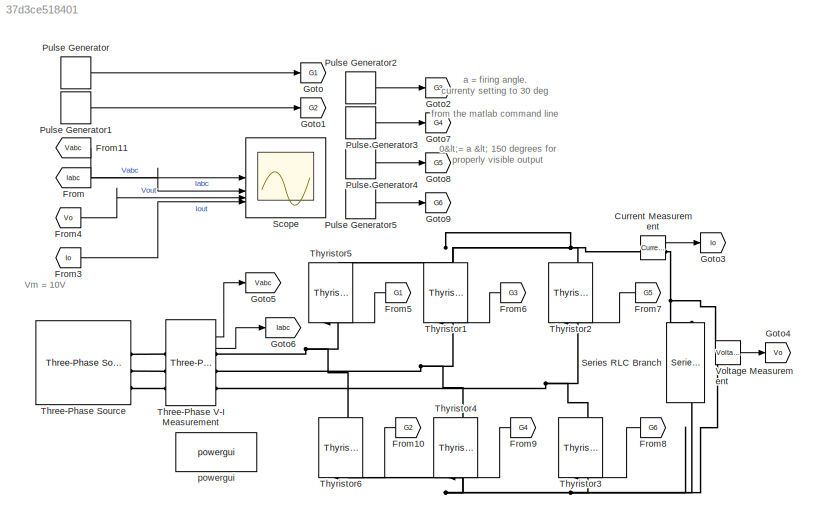
MODEL slx_37d3ce518401
KIND model
CONFIG AbsTol = auto
CONFIG EnableMultiTasking = off
CONFIG FixedStep = auto
CONFIG MaxStep = auto
CONFIG MinStep = auto
CONFIG RelTol = 1e-3
CONFIG SampleTimeConstraint = Unconstrained
CONFIG SolverName = VariableStepAuto
CONFIG StartTime = 0.0
CONFIG StopTime = 0.1
BLOCK [Reference] Current Measurement  REF=spsCurrentMeasurementLib/Current Measurement
  LibrarySourceBlock = sps_lib/Sensors and Measurements/Current Measurement
  SourceBlock = spsCurrentMeasurementLib/Current Measurement
  SourceType = Current Measurement
  UserDataPersistent = on
BLOCK [From] From
  GotoTag = Iabc
BLOCK [From] From10
  GotoTag = G2
  NameLocation = top
BLOCK [From] From11
  GotoTag = Vabc
BLOCK [From] From3
  GotoTag = Io
BLOCK [From] From4
  GotoTag = Vo
BLOCK [From] From5
  GotoTag = G1
  NameLocation = top
BLOCK [From] From6
  GotoTag = G3
  NameLocation = top
BLOCK [From] From7
  GotoTag = G5
  NameLocation = top
BLOCK [From] From8
  GotoTag = G6
  NameLocation = top
BLOCK [From] From9
  GotoTag = G4
  NameLocation = top
BLOCK [Goto] Goto
  GotoTag = G1
BLOCK [Goto] Goto1
  GotoTag = G2
BLOCK [Goto] Goto2
  GotoTag = G3
BLOCK [Goto] Goto3
  GotoTag = Io
BLOCK [Goto] Goto4
  GotoTag = Vo
BLOCK [Goto] Goto5
  GotoTag = Vabc
BLOCK [Goto] Goto6
  GotoTag = Iabc
BLOCK [Goto] Goto7
  GotoTag = G4
BLOCK [Goto] Goto8
  GotoTag = G5
BLOCK [Goto] Goto9
  GotoTag = G6
BLOCK [DiscretePulseGenerator] Pulse Generator
  Period = 0.02
  PhaseDelay = (a)*0.02/360
  PulseType = Time based
  PulseWidth = 5
BLOCK [DiscretePulseGenerator] Pulse Generator1
  Period = 0.02
  PhaseDelay = (a+180)*0.02/360
  PulseType = Time based
  PulseWidth = 5
BLOCK [DiscretePulseGenerator] Pulse Generator2
  Period = 0.02
  PhaseDelay = (a+120)*0.02/360
  PulseType = Time based
  PulseWidth = 5
BLOCK [DiscretePulseGenerator] Pulse Generator3
  Period = 0.02
  PhaseDelay = (a+300)*0.02/360
  PulseType = Time based
  PulseWidth = 5
BLOCK [DiscretePulseGenerator] Pulse Generator4
  Period = 0.02
  PhaseDelay = (a+240)*0.02/360
  PulseType = Time based
  PulseWidth = 5
BLOCK [DiscretePulseGenerator] Pulse Generator5
  Period = 0.02
  PhaseDelay = (a+60)*0.02/360
  PulseType = Time based
  PulseWidth = 5
BLOCK [Scope] Scope
  Floating = off
  NumInputPorts = 4
  ScopeSpecificationString = Simulink.scopes.TimeScopeBlockCfg('CurrentConfiguration', extmgr.ConfigurationSet(extmgr.Configuration('Core','General UI',true,'FigureColor',[1 1 1],'DisplayFullSourceName',true),extmgr.Configuration('Core','Source UI',true),extmgr.Configuration('Sources','WiredSimulink',true),extmgr.Configuration('Visuals','Time Domain',true,'TimeAxisLabels','All','SerializedDisplays',{struct('MinYLimReal','-7.2...<+4702ch>
BLOCK [Reference] Series RLC Branch  REF=spsSeriesRLCBranchLib/Series RLC Branch
  LibrarySourceBlock = sps_lib/Passives/Series RLC Branch
  NameLocation = left
  SourceBlock = spsSeriesRLCBranchLib/Series RLC Branch
  SourceType = Series RLC Branch
BLOCK [Reference] Three-Phase Source  REF=spsThreePhaseSourceLib/Three-Phase Source
  LibrarySourceBlock = sps_lib/Sources/Three-Phase Source
  SourceBlock = spsThreePhaseSourceLib/Three-Phase Source
  SourceType = Three-Phase Source
BLOCK [Reference] Three-Phase V-I Measurement  REF=spsThreePhaseVIMeasurementLib/Three-Phase
V-I Measurement
  LibrarySourceBlock = sps_lib/Sensors and Measurements/Three-Phase\nV-I Measurement
  SourceBlock = spsThreePhaseVIMeasurementLib/Three-Phase\nV-I Measurement
  SourceType = Three-Phase VI Measurement
BLOCK [Reference] Thyristor1  REF=spsThyristorLib/Thyristor
  LibrarySourceBlock = sps_lib/Power Electronics/Thyristor
  NameLocation = right
  SourceBlock = spsThyristorLib/Thyristor
  SourceType = Thyristor
BLOCK [Reference] Thyristor2  REF=spsThyristorLib/Thyristor
  LibrarySourceBlock = sps_lib/Power Electronics/Thyristor
  NameLocation = right
  SourceBlock = spsThyristorLib/Thyristor
  SourceType = Thyristor
BLOCK [Reference] Thyristor3  REF=spsThyristorLib/Thyristor
  LibrarySourceBlock = sps_lib/Power Electronics/Thyristor
  NameLocation = right
  SourceBlock = spsThyristorLib/Thyristor
  SourceType = Thyristor
BLOCK [Reference] Thyristor4  REF=spsThyristorLib/Thyristor
  LibrarySourceBlock = sps_lib/Power Electronics/Thyristor
  NameLocation = right
  SourceBlock = spsThyristorLib/Thyristor
  SourceType = Thyristor
BLOCK [Reference] Thyristor5  REF=spsThyristorLib/Thyristor
  LibrarySourceBlock = sps_lib/Power Electronics/Thyristor
  NameLocation = right
  SourceBlock = spsThyristorLib/Thyristor
  SourceType = Thyristor
BLOCK [Reference] Thyristor6  REF=spsThyristorLib/Thyristor
  LibrarySourceBlock = sps_lib/Power Electronics/Thyristor
  NameLocation = right
  SourceBlock = spsThyristorLib/Thyristor
  SourceType = Thyristor
BLOCK [Reference] Voltage Measurement  REF=spsVoltageMeasurementLib/Voltage Measurement
  LibrarySourceBlock = sps_lib/Sensors and Measurements/Voltage Measurement
  SourceBlock = spsVoltageMeasurementLib/Voltage Measurement
  SourceType = Voltage Measurement
  UserDataPersistent = on
BLOCK [Reference] powergui  REF=sps_lib/powergui
  LibrarySourceBlock = sps_lib/powergui
  Priority = 1
  SourceBlock = sps_lib/powergui
  SourceType = PSB option menu block
ANNOTATION (root): a = firing angle. currenty setting to 30 deg from the matlab command line
ANNOTATION (root): 0<= a < 150 degrees for properly visible output
ANNOTATION (root): Vm = 10V
LINE Current Measurement:1 -> Goto3:1
LINE From10:1 -> Thyristor6:1
LINE From11:1 -> Scope:1
LINE From3:1 -> Scope:4
LINE From4:1 -> Scope:3
LINE From5:1 -> Thyristor5:1
LINE From6:1 -> Thyristor1:1
LINE From7:1 -> Thyristor2:1
LINE From8:1 -> Thyristor3:1
LINE From9:1 -> Thyristor4:1
LINE From:1 -> Scope:2
LINE Pulse Generator1:1 -> Goto1:1
LINE Pulse Generator2:1 -> Goto2:1
LINE Pulse Generator3:1 -> Goto7:1
LINE Pulse Generator4:1 -> Goto8:1
LINE Pulse Generator5:1 -> Goto9:1
LINE Pulse Generator:1 -> Goto:1
LINE Three-Phase V-I Measurement:1 -> Goto5:1
LINE Three-Phase V-I Measurement:2 -> Goto6:1
LINE Voltage Measurement:1 -> Goto4:1
PNET net1: Current Measurement:LConn1 -- Thyristor1:RConn1 -- Thyristor2:RConn1 -- Thyristor5:RConn1
PNET net2: Current Measurement:RConn1 -- Series RLC Branch:LConn1 -- Voltage Measurement:LConn1
PNET net3: Series RLC Branch:RConn1 -- Thyristor3:LConn1 -- Thyristor4:LConn1 -- Thyristor6:LConn1 -- Voltage Measurement:LConn2
PLINE Three-Phase Source:RConn1 -- Three-Phase V-I Measurement:LConn1
PLINE Three-Phase Source:RConn2 -- Three-Phase V-I Measurement:LConn2
PLINE Three-Phase Source:RConn3 -- Three-Phase V-I Measurement:LConn3
PNET net4: Three-Phase V-I Measurement:RConn1 -- Thyristor5:LConn1 -- Thyristor6:RConn1
PNET net5: Three-Phase V-I Measurement:RConn2 -- Thyristor1:LConn1 -- Thyristor4:RConn1
PNET net6: Three-Phase V-I Measurement:RConn3 -- Thyristor2:LConn1 -- Thyristor3:RConn1
note: PNET lines group multi-terminal physical nets as a canonical sorted terminal list (undirected conserving connections); 2-terminal nets keep the pairwise PLINE form
